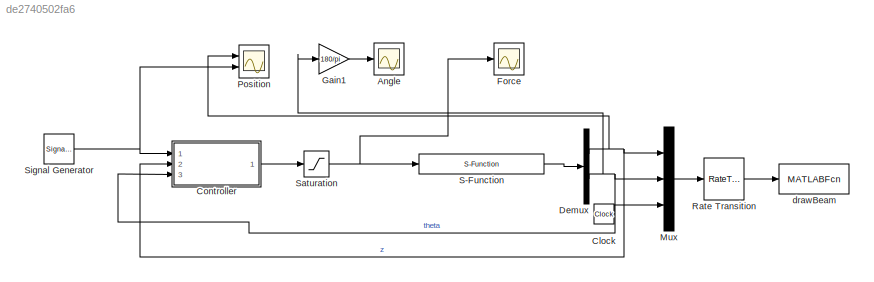
MODEL slx_de2740502fa6
KIND model
CONFIG AbsTol = auto
CONFIG EnableMultiTasking = off
CONFIG FixedStep = auto
CONFIG InitFcn = ball_on_beam_param
CONFIG MaxStep = 1
CONFIG MinStep = auto
CONFIG RelTol = 1e-3
CONFIG SampleTimeConstraint = Unconstrained
CONFIG Solver = ode45
CONFIG SolverName = ode45
CONFIG StartTime = 0.0
CONFIG StopTime = 100
BLOCK [Scope] Angle
  Floating = off
  NumInputPorts = 1
  Ports = [1]
  ScopeSpecificationString = Simulink.scopes.TimeScopeBlockCfg('CurrentConfiguration', extmgr.ConfigurationSet(extmgr.Configuration('Core','General UI',true),extmgr.Configuration('Core','Source UI',true),extmgr.Configuration('Sources','WiredSimulink',true,'DataLoggingVariableName','ScopeData1'),extmgr.Configuration('Visuals','Time Domain',true,'SerializedDisplays',{struct('MinYLimReal','-76.8928','MaxYLimReal','384.31929','YL...<+1423ch>
BLOCK [Clock] Clock
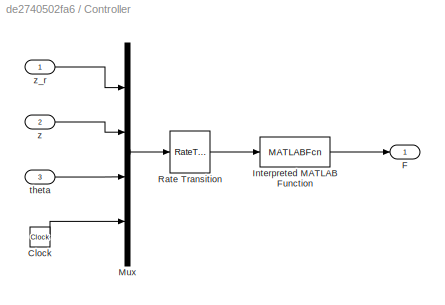
BLOCK [SubSystem] Controller
  Ports = [3, 1]
  RequestExecContextInheritance = off
BLOCK [Clock] Controller/Clock
BLOCK [Outport] Controller/F
  IconDisplay = Port number
BLOCK [MATLABFcn] Controller/Interpreted MATLAB Function
  MATLABFcn = ball_on_beam_ctrl(u,Par)
  Ports = [1, 1]
BLOCK [Mux] Controller/Mux
  DisplayOption = bar
  Ports = [4, 1]
BLOCK [RateTransition] Controller/Rate Transition
  OutPortSampleTime = Par.Ts
BLOCK [Inport] Controller/theta
  IconDisplay = Port number
  Port = 3
BLOCK [Inport] Controller/z
  IconDisplay = Port number
  Port = 2
BLOCK [Inport] Controller/z_r
  IconDisplay = Port number
BLOCK [Demux] Demux
  DisplayOption = bar
  Outputs = 2
  Ports = [1, 2]
BLOCK [Scope] Force
  Floating = off
  NumInputPorts = 1
  Ports = [1]
  ScopeSpecificationString = Simulink.scopes.TimeScopeBlockCfg('CurrentConfiguration', extmgr.ConfigurationSet(extmgr.Configuration('Core','General UI',true),extmgr.Configuration('Core','Source UI',true),extmgr.Configuration('Sources','WiredSimulink',true,'DataLoggingVariableName','ScopeData1'),extmgr.Configuration('Visuals','Time Domain',true,'SerializedDisplays',{struct('MinYLimReal','-50.00000','MaxYLimReal','50.00000','YL...<+1446ch>
BLOCK [Gain] Gain1
  Gain = 180/pi
  OutDataTypeStr = Inherit: Inherit via internal rule
  ParamDataTypeStr = Inherit: Inherit via internal rule
  SaturateOnIntegerOverflow = off
BLOCK [Mux] Mux
  DisplayOption = bar
  Inputs = 3
  Ports = [3, 1]
BLOCK [Scope] Position
  Floating = off
  NumInputPorts = 2
  Ports = [2]
  ScopeSpecificationString = Simulink.scopes.TimeScopeBlockCfg('CurrentConfiguration', extmgr.ConfigurationSet(extmgr.Configuration('Core','General UI',true),extmgr.Configuration('Core','Source UI',true),extmgr.Configuration('Sources','WiredSimulink',true),extmgr.Configuration('Visuals','Time Domain',true,'SerializedDisplays',{struct('MinYLimReal','-41.84795','MaxYLimReal','371.63159','YLabelReal','','MinYLimMag','0.00000','M...<+1424ch>
BLOCK [RateTransition] Rate Transition
  OutPortSampleTime = Par.t_plot
BLOCK [S-Function] S-Function
  EnableBusSupport = off
  FunctionName = ball_on_beam_dynamics
  Parameters = Par
  Ports = [1, 1]
  SFcnIsStateOwnerBlock = off
  SFunctionDeploymentMode = off
BLOCK [Saturate] Saturation
  InputPortMap = u0
  LowerLimit = -Par.F_max
  Ports = [1, 1]
  UpperLimit = Par.F_max
BLOCK [SignalGenerator] Signal Generator
  Amplitude = 0.5
  Frequency = 0.05
  Ports = [0, 1]
  WaveForm = square
BLOCK [MATLABFcn] drawBeam
  MATLABFcn = ball_on_beam_animation(u)
  OutputDimensions = 0
  Ports = [1]
LINE Clock:1 -> Mux:3
LINE Controller/Clock:1 -> Controller/Mux:4
LINE Controller/Interpreted MATLAB Function:1 -> Controller/F:1
LINE Controller/Mux:1 -> Controller/Rate Transition:1
LINE Controller/Rate Transition:1 -> Controller/Interpreted MATLAB Function:1
LINE Controller/theta:1 -> Controller/Mux:3
LINE Controller/z:1 -> Controller/Mux:2
LINE Controller/z_r:1 -> Controller/Mux:1
LINE Controller:1 -> Saturation:1
NET Demux:1 -> Controller:2, Mux:1, Position:1
NET Demux:2 -> Controller:3, Gain1:1, Mux:2
LINE Gain1:1 -> Angle:1
LINE Mux:1 -> Rate Transition:1
LINE Rate Transition:1 -> drawBeam:1
LINE S-Function:1 -> Demux:1
NET Saturation:1 -> Force:1, S-Function:1
NET Signal Generator:1 -> Controller:1, Position:2
note: NET lines group one-source signal fan-out (src -> all destinations, sorted); 1:1 wires keep LINE
